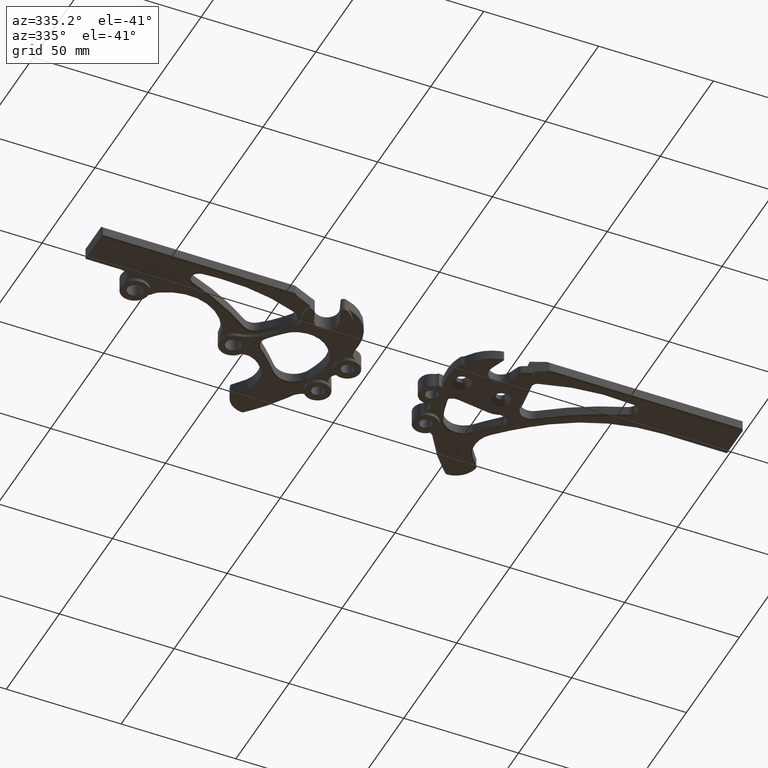
[diagram: clean part render]
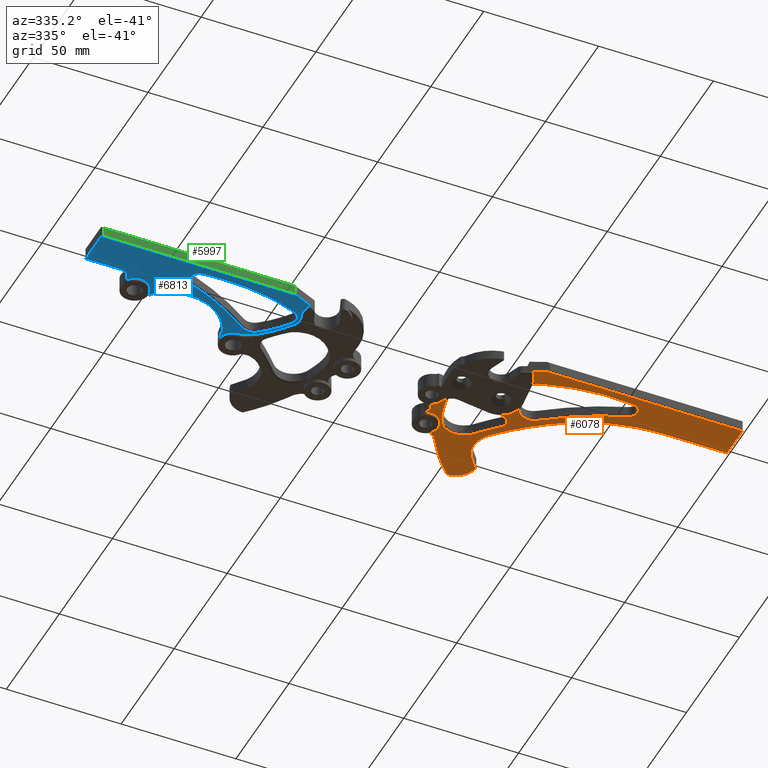
[diagram: same view with three faces highlighted in distinct colors, each labeled with its STEP entity id]
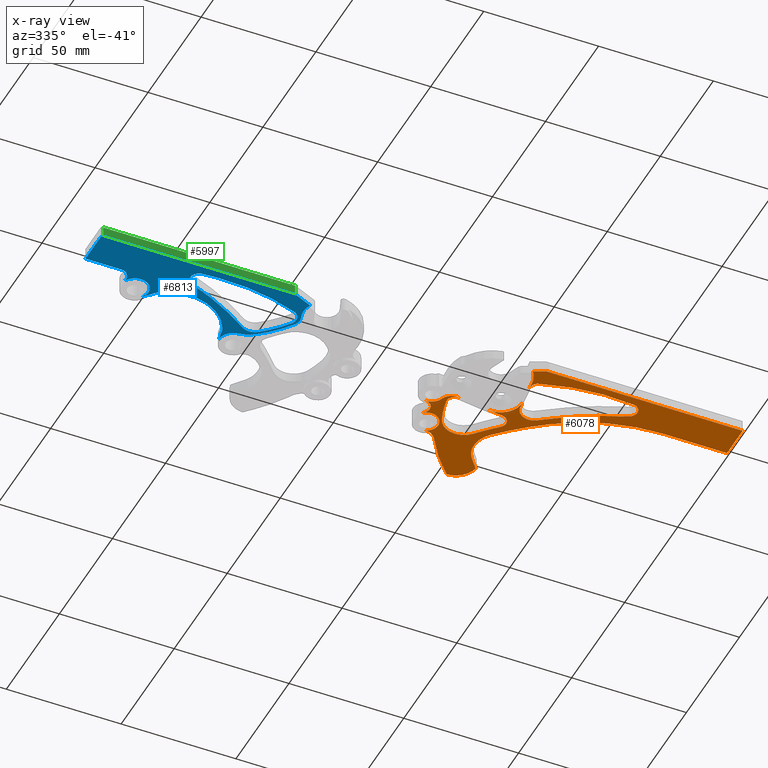
[diagram: x-ray of the same camera — body ghosted, the three highlighted faces saturated]
A machine part, auxiliary view with three faces highlighted in distinct colors.
The next image is the same camera in x-ray (body ghosted, the three faces saturated) — at least one of them is partly hidden behind the body in this view.
Their STEP definitions:

[orange] entity #6078 — the highlighted planar face has unit normal (0, 0, 1).
#10 = VERTEX_POINT ( 'NONE', #9895 ) ;
#13 = VERTEX_POINT ( 'NONE', #1298 ) ;
#84 = CARTESIAN_POINT ( 'NONE',  ( 14.93848785572699900, -5.129387867221003800, 0.0000000000000000000 ) ) ;
#86 = EDGE_CURVE ( 'NONE', #980, #2248, #4770, .T. ) ;
#162 = DIRECTION ( 'NONE',  ( 0.0000000000000000000, -0.0000000000000000000, -1.000000000000000000 ) ) ;
#179 = DIRECTION ( 'NONE',  ( 0.0000000000000000000, -0.0000000000000000000, -1.000000000000000000 ) ) ;
#217 = ORIENTED_EDGE ( 'NONE', *, *, #1196, .T. ) ;
#228 = EDGE_CURVE ( 'NONE', #10, #8892, #1745, .T. ) ;
#249 = CARTESIAN_POINT ( 'NONE',  ( 14.96386290219296600, -5.108149143146475200, 0.0000000000000000000 ) ) ;
#291 = CARTESIAN_POINT ( 'NONE',  ( 14.90768251114664300, -6.823930462202310000, 0.0000000000000000000 ) ) ;
#355 = CARTESIAN_POINT ( 'NONE',  ( 12.40139082220093800, -5.888314618672154700, 0.0000000000000000000 ) ) ;
#366 = DIRECTION ( 'NONE',  ( -0.0000000000000000000, 0.0000000000000000000, 1.000000000000000000 ) ) ;
#404 = CIRCLE ( 'NONE', #8381, 0.03000000000000159100 ) ;
#405 = LINE ( 'NONE', #6717, #8445 ) ;
#431 = DIRECTION ( 'NONE',  ( -0.0000000000000000000, 0.0000000000000000000, 1.000000000000000000 ) ) ;
#514 = ORIENTED_EDGE ( 'NONE', *, *, #6101, .F. ) ;
#536 = CIRCLE ( 'NONE', #10096, 0.2170000000001818500 ) ;
#543 = VERTEX_POINT ( 'NONE', #6367 ) ;
#566 = EDGE_CURVE ( 'NONE', #2984, #5404, #1374, .T. ) ;
#578 = AXIS2_PLACEMENT_3D ( 'NONE', #4456, #9915, #5262 ) ;
#580 = CARTESIAN_POINT ( 'NONE',  ( 13.84133386730599800, -5.039152984625999900, 0.0000000000000000000 ) ) ;
#584 = DIRECTION ( 'NONE',  ( 1.000000000000000000, -1.615548710832401200E-014, 0.0000000000000000000 ) ) ;
#586 = VERTEX_POINT ( 'NONE', #9035 ) ;
#592 = EDGE_CURVE ( 'NONE', #5669, #586, #3183, .T. ) ;
#596 = ORIENTED_EDGE ( 'NONE', *, *, #1873, .F. ) ;
#605 = CARTESIAN_POINT ( 'NONE',  ( 4.792407545410773300, 2.986386773395025300, 0.0000000000000000000 ) ) ;
#643 = VERTEX_POINT ( 'NONE', #7726 ) ;
#671 = AXIS2_PLACEMENT_3D ( 'NONE', #8631, #6749, #2089 ) ;
#673 = ORIENTED_EDGE ( 'NONE', *, *, #891, .F. ) ;
#724 = DIRECTION ( 'NONE',  ( 1.000000000000000000, 0.0000000000000000000, 0.0000000000000000000 ) ) ;
#801 = CIRCLE ( 'NONE', #8638, 0.1300000000001169100 ) ;
#820 = CARTESIAN_POINT ( 'NONE',  ( 6.188336416106102100, -9.930739848668265400, 0.0000000000000000000 ) ) ;
#863 = CARTESIAN_POINT ( 'NONE',  ( 8.679077495166328800, -10.36875431358551900, 0.0000000000000000000 ) ) ;
#882 = AXIS2_PLACEMENT_3D ( 'NONE', #9002, #5907, #2037 ) ;
#891 = EDGE_CURVE ( 'NONE', #2194, #8277, #8546, .T. ) ;
#893 = EDGE_CURVE ( 'NONE', #8277, #8587, #2341, .T. ) ;
#951 = CARTESIAN_POINT ( 'NONE',  ( 15.54171915078100100, -5.615564889361000000, 0.0000000000000000000 ) ) ;
#955 = ORIENTED_EDGE ( 'NONE', *, *, #3780, .T. ) ;
#980 = VERTEX_POINT ( 'NONE', #9948 ) ;
#1008 = DIRECTION ( 'NONE',  ( 1.000000000000000000, -5.035664506601458100E-015, 0.0000000000000000000 ) ) ;
#1050 = DIRECTION ( 'NONE',  ( 0.0000000000000000000, 0.0000000000000000000, -1.000000000000000000 ) ) ;
#1129 = DIRECTION ( 'NONE',  ( -0.0000000000000000000, 0.0000000000000000000, 1.000000000000000000 ) ) ;
#1139 = LINE ( 'NONE', #1283, #9170 ) ;
#1167 = CIRCLE ( 'NONE', #6718, 0.1299999999999988900 ) ;
#1174 = CARTESIAN_POINT ( 'NONE',  ( 14.41569893284230000, -5.736495281540738800, 0.0000000000000000000 ) ) ;
#1196 = EDGE_CURVE ( 'NONE', #586, #3013, #4996, .T. ) ;
#1234 = AXIS2_PLACEMENT_3D ( 'NONE', #5324, #9973, #4514 ) ;
#1265 = DIRECTION ( 'NONE',  ( 0.0000000000000000000, 0.0000000000000000000, -1.000000000000000000 ) ) ;
#1283 = CARTESIAN_POINT ( 'NONE',  ( 9.503839369260257200, 4.377605915475250200, 0.0000000000000000000 ) ) ;
#1291 = CARTESIAN_POINT ( 'NONE',  ( 14.93451234347010500, -6.622697348646668500, 4.320534986073510200E-016 ) ) ;
#1298 = CARTESIAN_POINT ( 'NONE',  ( 14.33225700334612200, -5.636808550217133500, 0.0000000000000000000 ) ) ;
#1345 = ORIENTED_EDGE ( 'NONE', *, *, #9802, .T. ) ;
#1374 = CIRCLE ( 'NONE', #8245, 0.3750000000000002200 ) ;
#1401 = DIRECTION ( 'NONE',  ( 0.0000000000000000000, 0.0000000000000000000, -1.000000000000000000 ) ) ;
#1446 = ORIENTED_EDGE ( 'NONE', *, *, #1715, .T. ) ;
#1466 = DIRECTION ( 'NONE',  ( -0.5288691552148479000, 0.8487033737781021200, 0.0000000000000000000 ) ) ;
#1468 = VERTEX_POINT ( 'NONE', #4424 ) ;
#1526 = VERTEX_POINT ( 'NONE', #84 ) ;
#1580 = ORIENTED_EDGE ( 'NONE', *, *, #86, .T. ) ;
#1588 = DIRECTION ( 'NONE',  ( -0.0000000000000000000, 0.0000000000000000000, 1.000000000000000000 ) ) ;
#1595 = DIRECTION ( 'NONE',  ( 1.000000000000000000, 0.0000000000000000000, 0.0000000000000000000 ) ) ;
#1652 = DIRECTION ( 'NONE',  ( 0.0000000000000000000, -0.0000000000000000000, -1.000000000000000000 ) ) ;
#1665 = DIRECTION ( 'NONE',  ( 0.0000000000000000000, -0.0000000000000000000, -1.000000000000000000 ) ) ;
#1667 = CARTESIAN_POINT ( 'NONE',  ( 15.00809028522814400, -5.099816030558295100, -3.523699360290486500E-016 ) ) ;
#1697 = VERTEX_POINT ( 'NONE', #5814 ) ;
#1715 = EDGE_CURVE ( 'NONE', #4036, #980, #2517, .T. ) ;
#1745 = CIRCLE ( 'NONE', #8622, 0.1500000000926285400 ) ;
#1782 = ORIENTED_EDGE ( 'NONE', *, *, #7182, .T. ) ;
#1786 = VERTEX_POINT ( 'NONE', #249 ) ;
#1810 = VERTEX_POINT ( 'NONE', #5224 ) ;
#1840 = VERTEX_POINT ( 'NONE', #4697 ) ;
#1857 = DIRECTION ( 'NONE',  ( 0.0000000000000000000, 0.0000000000000000000, -1.000000000000000000 ) ) ;
#1866 = CARTESIAN_POINT ( 'NONE',  ( 15.46566103589562700, -6.172779023257161800, -3.381462238251419300E-016 ) ) ;
#1873 = EDGE_CURVE ( 'NONE', #8587, #8640, #7989, .T. ) ;
#1902 = CARTESIAN_POINT ( 'NONE',  ( 15.38602449058177000, -6.841430256784339500, -3.377695072063128100E-016 ) ) ;
#1989 = VECTOR ( 'NONE', #8579, 39.37007874015748100 ) ;
#2001 = AXIS2_PLACEMENT_3D ( 'NONE', #3773, #9235, #4563 ) ;
#2006 = AXIS2_PLACEMENT_3D ( 'NONE', #3415, #1129, #5786 ) ;
#2037 = DIRECTION ( 'NONE',  ( 1.000000000000000000, 0.0000000000000000000, 0.0000000000000000000 ) ) ;
#2071 = CARTESIAN_POINT ( 'NONE',  ( 13.80986172813048000, -4.996587982624753000, 6.164659355067230100E-017 ) ) ;
#2089 = DIRECTION ( 'NONE',  ( 1.000000000000000000, 0.0000000000000000000, 0.0000000000000000000 ) ) ;
#2104 = VERTEX_POINT ( 'NONE', #4568 ) ;
#2109 = ORIENTED_EDGE ( 'NONE', *, *, #5968, .T. ) ;
#2139 = ORIENTED_EDGE ( 'NONE', *, *, #2334, .T. ) ;
#2189 = EDGE_CURVE ( 'NONE', #8066, #7126, #7381, .T. ) ;
#2194 = VERTEX_POINT ( 'NONE', #8429 ) ;
#2248 = VERTEX_POINT ( 'NONE', #355 ) ;
#2260 = EDGE_CURVE ( 'NONE', #8268, #4616, #1167, .T. ) ;
#2334 = EDGE_CURVE ( 'NONE', #9584, #7754, #8215, .T. ) ;
#2341 = CIRCLE ( 'NONE', #6735, 4.869999999999557800 ) ;
#2347 = DIRECTION ( 'NONE',  ( 1.000000000000000000, 0.0000000000000000000, 0.0000000000000000000 ) ) ;
#2376 = AXIS2_PLACEMENT_3D ( 'NONE', #5919, #6701, #5153 ) ;
#2377 = CIRCLE ( 'NONE', #578, 0.1300000000001169100 ) ;
#2410 = CARTESIAN_POINT ( 'NONE',  ( 15.54171915078100100, -5.615564889361000000, 0.0000000000000000000 ) ) ;
#2433 = DIRECTION ( 'NONE',  ( -0.7668210101809026500, -0.6418609961238802600, 0.0000000000000000000 ) ) ;
#2491 = ORIENTED_EDGE ( 'NONE', *, *, #5019, .F. ) ;
#2493 = EDGE_CURVE ( 'NONE', #3615, #1468, #801, .T. ) ;
#2515 = ORIENTED_EDGE ( 'NONE', *, *, #6406, .F. ) ;
#2517 = CIRCLE ( 'NONE', #671, 0.1500000000000691600 ) ;
#2571 = AXIS2_PLACEMENT_3D ( 'NONE', #2787, #9199, #3712 ) ;
#2599 = ORIENTED_EDGE ( 'NONE', *, *, #6704, .T. ) ;
#2619 = ORIENTED_EDGE ( 'NONE', *, *, #3367, .T. ) ;
#2632 = CARTESIAN_POINT ( 'NONE',  ( 15.46109759199811900, -6.033190573565650400, 0.0000000000000000000 ) ) ;
#2650 = AXIS2_PLACEMENT_3D ( 'NONE', #5885, #1857, #9672 ) ;
#2653 = CARTESIAN_POINT ( 'NONE',  ( 5.878947960301034400, -9.434248375007980400, 0.0000000000000000000 ) ) ;
#2683 = ORIENTED_EDGE ( 'NONE', *, *, #4933, .T. ) ;
#2684 = DIRECTION ( 'NONE',  ( 1.000000000000000000, 0.0000000000000000000, 0.0000000000000000000 ) ) ;
#2756 = AXIS2_PLACEMENT_3D ( 'NONE', #4696, #9363, #3907 ) ;
#2787 = CARTESIAN_POINT ( 'NONE',  ( 12.37126695896290900, -5.741370571961724100, 0.0000000000000000000 ) ) ;
#2797 = B_SPLINE_CURVE_WITH_KNOTS ( 'NONE', 3,
 ( #9625, #4951, #4167, #8858, #3377, #8074, #2632 ),
 .UNSPECIFIED., .F., .F.,
 ( 4, 1, 1, 1, 4 ),
 ( 0.001690120772360766100, 0.001727117016328427600, 0.002471876945726911700, 0.003212460074078706200, 0.003933833950585725900 ),
 .UNSPECIFIED. ) ;
#2804 = ORIENTED_EDGE ( 'NONE', *, *, #3789, .F. ) ;
#2814 = ORIENTED_EDGE ( 'NONE', *, *, #3771, .F. ) ;
#2863 = DIRECTION ( 'NONE',  ( -0.0000000000000000000, 0.0000000000000000000, 1.000000000000000000 ) ) ;
#2871 = CARTESIAN_POINT ( 'NONE',  ( 14.90768251114664300, -6.823930462202310000, 0.0000000000000000000 ) ) ;
#2898 = AXIS2_PLACEMENT_3D ( 'NONE', #5699, #1050, #6473 ) ;
#2935 = ORIENTED_EDGE ( 'NONE', *, *, #8879, .T. ) ;
#2976 = LINE ( 'NONE', #863, #6864 ) ;
#2984 = VERTEX_POINT ( 'NONE', #291 ) ;
#3013 = VERTEX_POINT ( 'NONE', #4474 ) ;
#3025 = EDGE_CURVE ( 'NONE', #2248, #8160, #5172, .T. ) ;
#3125 = CARTESIAN_POINT ( 'NONE',  ( 15.02192612433218600, -5.229077662747769800, 0.0000000000000000000 ) ) ;
#3183 = CIRCLE ( 'NONE', #7207, 4.999999999999580800 ) ;
#3228 = CARTESIAN_POINT ( 'NONE',  ( 15.48288070106708500, -5.124555952754346500, 0.0000000000000000000 ) ) ;
#3243 = CARTESIAN_POINT ( 'NONE',  ( 15.37125948151188500, -6.902251738806183900, -7.009673394545322300E-017 ) ) ;
#3255 = ORIENTED_EDGE ( 'NONE', *, *, #10017, .F. ) ;
#3269 = AXIS2_PLACEMENT_3D ( 'NONE', #951, #4110, #1008 ) ;
#3328 = ORIENTED_EDGE ( 'NONE', *, *, #893, .F. ) ;
#3367 = EDGE_CURVE ( 'NONE', #1526, #1786, #405, .T. ) ;
#3377 = CARTESIAN_POINT ( 'NONE',  ( 15.46184803449254700, -6.004421812635890800, -2.108911952140234500E-016 ) ) ;
#3397 = ORIENTED_EDGE ( 'NONE', *, *, #6262, .T. ) ;
#3415 = CARTESIAN_POINT ( 'NONE',  ( 14.46702915825320300, -8.380438741605633600, 0.0000000000000000000 ) ) ;
#3435 = VECTOR ( 'NONE', #3596, 39.37007874015748100 ) ;
#3463 = EDGE_CURVE ( 'NONE', #2194, #9630, #4781, .T. ) ;
#3492 = CARTESIAN_POINT ( 'NONE',  ( 15.59317091056738000, -5.826376929753981100, 0.0000000000000000000 ) ) ;
#3541 = CARTESIAN_POINT ( 'NONE',  ( 13.40551959680070800, -10.78644950901810000, 0.0000000000000000000 ) ) ;
#3596 = DIRECTION ( 'NONE',  ( 0.8487033737782993000, 0.5288691552145317100, 0.0000000000000000000 ) ) ;
#3614 = AXIS2_PLACEMENT_3D ( 'NONE', #7554, #5207, #5528 ) ;
#3615 = VERTEX_POINT ( 'NONE', #4360 ) ;
#3625 = CARTESIAN_POINT ( 'NONE',  ( 13.40551959680067300, -10.78644950901797200, 0.0000000000000000000 ) ) ;
#3629 = DIRECTION ( 'NONE',  ( 1.000000000000000000, 0.0000000000000000000, 0.0000000000000000000 ) ) ;
#3686 = FACE_BOUND ( 'NONE', #10102, .T. ) ;
#3712 = DIRECTION ( 'NONE',  ( 1.000000000000000000, 0.0000000000000000000, 0.0000000000000000000 ) ) ;
#3763 = DIRECTION ( 'NONE',  ( -0.0000000000000000000, 0.0000000000000000000, 1.000000000000000000 ) ) ;
#3771 = EDGE_CURVE ( 'NONE', #1697, #8082, #5053, .T. ) ;
#3773 = CARTESIAN_POINT ( 'NONE',  ( 14.41979575576495500, -5.752617084974213300, 0.0000000000000000000 ) ) ;
#3780 = EDGE_CURVE ( 'NONE', #4184, #5404, #6727, .T. ) ;
#3789 = EDGE_CURVE ( 'NONE', #643, #8892, #6621, .T. ) ;
#3802 = CARTESIAN_POINT ( 'NONE',  ( 13.78376634852109500, -4.914171213038237300, 0.0000000000000000000 ) ) ;
#3834 = AXIS2_PLACEMENT_3D ( 'NONE', #9229, #3763, #8453 ) ;
#3851 = CARTESIAN_POINT ( 'NONE',  ( 14.94107575597033100, -5.661552702053799500, 0.0000000000000000000 ) ) ;
#3904 = DIRECTION ( 'NONE',  ( 1.000000000000000000, 0.0000000000000000000, 0.0000000000000000000 ) ) ;
#3907 = DIRECTION ( 'NONE',  ( 1.000000000000000000, -8.405686134351791600E-015, 0.0000000000000000000 ) ) ;
#3938 = CIRCLE ( 'NONE', #2001, 0.1350000000001863900 ) ;
#4036 = VERTEX_POINT ( 'NONE', #5588 ) ;
#4107 = AXIS2_PLACEMENT_3D ( 'NONE', #7465, #179, #5614 ) ;
#4110 = DIRECTION ( 'NONE',  ( 0.0000000000000000000, -0.0000000000000000000, -1.000000000000000000 ) ) ;
#4162 = CIRCLE ( 'NONE', #2650, 0.2000000000000011500 ) ;
#4167 = CARTESIAN_POINT ( 'NONE',  ( 15.47574994701815100, -5.957154776959496800, -2.110333769211004700E-016 ) ) ;
#4184 = VERTEX_POINT ( 'NONE', #5714 ) ;
#4202 = CARTESIAN_POINT ( 'NONE',  ( 10.97545526996499600, -6.935866041534997500, 0.0000000000000000000 ) ) ;
#4238 = EDGE_CURVE ( 'NONE', #543, #5610, #5531, .T. ) ;
#4287 = CIRCLE ( 'NONE', #5205, 0.2193529867079986300 ) ;
#4297 = CARTESIAN_POINT ( 'NONE',  ( 13.81284693505934900, -5.803068684767302100, 0.0000000000000000000 ) ) ;
#4338 = DIRECTION ( 'NONE',  ( 0.9912457952158698600, 0.1320294416668402700, 0.0000000000000000000 ) ) ;
#4354 = ORIENTED_EDGE ( 'NONE', *, *, #5716, .T. ) ;
#4360 = CARTESIAN_POINT ( 'NONE',  ( 14.28569893284218400, -5.736495281540738800, 0.0000000000000000000 ) ) ;
#4367 = AXIS2_PLACEMENT_3D ( 'NONE', #9607, #1401, #7921 ) ;
#4424 = CARTESIAN_POINT ( 'NONE',  ( 14.28569998468629400, -5.737018233127917800, 0.0000000000000000000 ) ) ;
#4456 = CARTESIAN_POINT ( 'NONE',  ( 14.41569893284230000, -5.736495281540738800, 0.0000000000000000000 ) ) ;
#4474 = CARTESIAN_POINT ( 'NONE',  ( 15.28554963558085300, -5.599603155920909200, 0.0000000000000000000 ) ) ;
#4503 = ORIENTED_EDGE ( 'NONE', *, *, #8566, .F. ) ;
#4514 = DIRECTION ( 'NONE',  ( 1.000000000000000000, 0.0000000000000000000, 0.0000000000000000000 ) ) ;
#4546 = CIRCLE ( 'NONE', #2898, 0.5399854739220001400 ) ;
#4563 = DIRECTION ( 'NONE',  ( 1.000000000000000000, 0.0000000000000000000, 0.0000000000000000000 ) ) ;
#4568 = CARTESIAN_POINT ( 'NONE',  ( 14.04492934971974300, -5.649064607402516800, -2.101659684762460800E-013 ) ) ;
#4572 = CARTESIAN_POINT ( 'NONE',  ( 15.45790067793590200, -6.403837712273236200, -3.374792687485637800E-016 ) ) ;
#4616 = VERTEX_POINT ( 'NONE', #2071 ) ;
#4654 = EDGE_CURVE ( 'NONE', #8066, #9630, #9053, .T. ) ;
#4696 = CARTESIAN_POINT ( 'NONE',  ( 15.04200169408400000, -5.225315099675999200, 0.0000000000000000000 ) ) ;
#4697 = CARTESIAN_POINT ( 'NONE',  ( 14.28479575576476900, -5.752617084974213300, 0.0000000000000000000 ) ) ;
#4770 = CIRCLE ( 'NONE', #2571, 0.1500000000000691600 ) ;
#4781 = LINE ( 'NONE', #820, #1989 ) ;
#4912 = EDGE_CURVE ( 'NONE', #8082, #9749, #1139, .T. ) ;
#4933 = EDGE_CURVE ( 'NONE', #4616, #1810, #7101, .T. ) ;
#4951 = CARTESIAN_POINT ( 'NONE',  ( 15.48052873044534800, -5.947997080069606000, -2.110054557396745000E-016 ) ) ;
#4996 = CIRCLE ( 'NONE', #5359, 0.3499999999999916000 ) ;
#5019 = EDGE_CURVE ( 'NONE', #543, #7126, #404, .T. ) ;
#5053 = CIRCLE ( 'NONE', #4367, 0.3586981296120016500 ) ;
#5098 = CARTESIAN_POINT ( 'NONE',  ( 15.16232067565839400, -5.176087641150292700, 0.0000000000000000000 ) ) ;
#5153 = DIRECTION ( 'NONE',  ( 1.000000000000000000, 0.0000000000000000000, 0.0000000000000000000 ) ) ;
#5172 = CIRCLE ( 'NONE', #4107, 5.000000000000218500 ) ;
#5205 = AXIS2_PLACEMENT_3D ( 'NONE', #8610, #7029, #1595 ) ;
#5207 = DIRECTION ( 'NONE',  ( 0.0000000000000000000, -0.0000000000000000000, -1.000000000000000000 ) ) ;
#5216 = DIRECTION ( 'NONE',  ( 0.4183614115447572600, -0.9082806445863955700, 0.0000000000000000000 ) ) ;
#5224 = CARTESIAN_POINT ( 'NONE',  ( 13.69189823002395600, -4.946844117293560200, 0.0000000000000000000 ) ) ;
#5262 = DIRECTION ( 'NONE',  ( 1.000000000000000000, 0.0000000000000000000, 0.0000000000000000000 ) ) ;
#5274 = ORIENTED_EDGE ( 'NONE', *, *, #2260, .T. ) ;
#5275 = CARTESIAN_POINT ( 'NONE',  ( 13.63066654166259400, -5.921656722761418300, 0.0000000000000000000 ) ) ;
#5282 = VECTOR ( 'NONE', #5216, 39.37007874015748900 ) ;
#5324 = CARTESIAN_POINT ( 'NONE',  ( 13.21870635791768800, -5.971300432718258800, 0.0000000000000000000 ) ) ;
#5359 = AXIS2_PLACEMENT_3D ( 'NONE', #3851, #366, #9131 ) ;
#5404 = VERTEX_POINT ( 'NONE', #3243 ) ;
#5455 = DIRECTION ( 'NONE',  ( 1.000000000000000000, 0.0000000000000000000, 0.0000000000000000000 ) ) ;
#5523 = FACE_OUTER_BOUND ( 'NONE', #8806, .T. ) ;
#5528 = DIRECTION ( 'NONE',  ( 1.000000000000000000, 0.0000000000000000000, 0.0000000000000000000 ) ) ;
#5531 = LINE ( 'NONE', #2653, #3435 ) ;
#5547 = DIRECTION ( 'NONE',  ( 1.000000000000000000, 0.0000000000000000000, 0.0000000000000000000 ) ) ;
#5588 = CARTESIAN_POINT ( 'NONE',  ( 12.27798377501816100, -5.623904629692696700, 0.0000000000000000000 ) ) ;
#5610 = VERTEX_POINT ( 'NONE', #8260 ) ;
#5614 = DIRECTION ( 'NONE',  ( 1.000000000000000000, 0.0000000000000000000, 0.0000000000000000000 ) ) ;
#5660 = EDGE_CURVE ( 'NONE', #2104, #8160, #8459, .T. ) ;
#5669 = VERTEX_POINT ( 'NONE', #7765 ) ;
#5699 = CARTESIAN_POINT ( 'NONE',  ( 14.27422470284200000, -4.688262127954000200, 0.0000000000000000000 ) ) ;
#5714 = CARTESIAN_POINT ( 'NONE',  ( 15.46109759199811900, -6.033190573565650400, 0.0000000000000000000 ) ) ;
#5716 = EDGE_CURVE ( 'NONE', #2104, #7930, #4287, .T. ) ;
#5737 = LINE ( 'NONE', #9814, #7822 ) ;
#5767 = CARTESIAN_POINT ( 'NONE',  ( 14.93931741003900800, -6.546989931653858000, 0.0000000000000000000 ) ) ;
#5774 = ORIENTED_EDGE ( 'NONE', *, *, #7293, .T. ) ;
#5786 = DIRECTION ( 'NONE',  ( 1.000000000000000000, 0.0000000000000000000, 0.0000000000000000000 ) ) ;
#5814 = CARTESIAN_POINT ( 'NONE',  ( 14.53637432860099700, -5.465953881429005200, 0.0000000000000000000 ) ) ;
#5820 = DIRECTION ( 'NONE',  ( 1.000000000000000000, 0.0000000000000000000, 0.0000000000000000000 ) ) ;
#5837 = DIRECTION ( 'NONE',  ( -0.0000000000000000000, 0.0000000000000000000, 1.000000000000000000 ) ) ;
#5885 = CARTESIAN_POINT ( 'NONE',  ( 15.09223068564800000, -5.261517041257000000, 0.0000000000000000000 ) ) ;
#5907 = DIRECTION ( 'NONE',  ( -0.0000000000000000000, 0.0000000000000000000, 1.000000000000000000 ) ) ;
#5911 = CARTESIAN_POINT ( 'NONE',  ( 15.36253282578499900, -4.943986329298000200, 0.0000000000000000000 ) ) ;
#5919 = CARTESIAN_POINT ( 'NONE',  ( 15.62873664317623800, -5.972099538472942700, 0.0000000000000000000 ) ) ;
#5923 = CARTESIAN_POINT ( 'NONE',  ( 14.93931741003900800, -6.546989931653858000, 0.0000000000000000000 ) ) ;
#5930 = AXIS2_PLACEMENT_3D ( 'NONE', #6046, #1665, #7361 ) ;
#5968 = EDGE_CURVE ( 'NONE', #1786, #8705, #4162, .T. ) ;
#5980 = CIRCLE ( 'NONE', #1234, 2.099999999999995600 ) ;
#6037 = DIRECTION ( 'NONE',  ( -0.0000000000000000000, 0.0000000000000000000, 1.000000000000000000 ) ) ;
#6046 = CARTESIAN_POINT ( 'NONE',  ( 14.47026121039398400, -6.517219450063329600, 0.0000000000000000000 ) ) ;
#6053 = CARTESIAN_POINT ( 'NONE',  ( 10.70210529848244900, -6.440482560694720200, 0.0000000000000000000 ) ) ;
#6078 = ADVANCED_FACE ( 'NONE', ( #3686, #5523 ), #8013, .F. ) ;
#6101 = EDGE_CURVE ( 'NONE', #8268, #7930, #9420, .T. ) ;
#6150 = ORIENTED_EDGE ( 'NONE', *, *, #5660, .F. ) ;
#6204 = AXIS2_PLACEMENT_3D ( 'NONE', #6513, #162, #7139 ) ;
#6262 = EDGE_CURVE ( 'NONE', #2984, #8640, #9603, .T. ) ;
#6281 = DIRECTION ( 'NONE',  ( -0.4183661917541004500, 0.9082784427680595800, 0.0000000000000000000 ) ) ;
#6326 = ORIENTED_EDGE ( 'NONE', *, *, #8798, .T. ) ;
#6367 = CARTESIAN_POINT ( 'NONE',  ( 10.67281165049749900, -6.446954205596435700, 6.746050078589156600E-019 ) ) ;
#6373 = CARTESIAN_POINT ( 'NONE',  ( 15.41760709616015400, -6.692419460308728100, -3.374792687485637800E-016 ) ) ;
#6391 = CIRCLE ( 'NONE', #2756, 0.1299999999999967000 ) ;
#6406 = EDGE_CURVE ( 'NONE', #9584, #643, #6980, .T. ) ;
#6424 = DIRECTION ( 'NONE',  ( -0.0000000000000000000, 0.0000000000000000000, 1.000000000000000000 ) ) ;
#6473 = DIRECTION ( 'NONE',  ( -1.000000000000000000, 0.0000000000000000000, 0.0000000000000000000 ) ) ;
#6477 = ORIENTED_EDGE ( 'NONE', *, *, #6806, .T. ) ;
#6482 = ORIENTED_EDGE ( 'NONE', *, *, #3463, .T. ) ;
#6513 = CARTESIAN_POINT ( 'NONE',  ( 13.49104769700490500, -8.938427608694947700, 0.0000000000000000000 ) ) ;
#6534 = DIRECTION ( 'NONE',  ( -0.0000000000000000000, 0.0000000000000000000, 1.000000000000000000 ) ) ;
#6557 = CARTESIAN_POINT ( 'NONE',  ( 15.56607047660799900, -5.249373664821001200, 0.0000000000000000000 ) ) ;
#6563 = VERTEX_POINT ( 'NONE', #1667 ) ;
#6590 = ORIENTED_EDGE ( 'NONE', *, *, #2493, .T. ) ;
#6615 = AXIS2_PLACEMENT_3D ( 'NONE', #7407, #6534, #5455 ) ;
#6621 = CIRCLE ( 'NONE', #3269, 0.2169999999072990100 ) ;
#6687 = DIRECTION ( 'NONE',  ( -1.000000000000000000, 0.0000000000000000000, 0.0000000000000000000 ) ) ;
#6693 = ORIENTED_EDGE ( 'NONE', *, *, #3025, .T. ) ;
#6701 = DIRECTION ( 'NONE',  ( -0.0000000000000000000, 0.0000000000000000000, 1.000000000000000000 ) ) ;
#6704 = EDGE_CURVE ( 'NONE', #1810, #4036, #7343, .T. ) ;
#6709 = CARTESIAN_POINT ( 'NONE',  ( 14.92471970842957400, -6.715803740928834000, 4.315988618716054400E-016 ) ) ;
#6717 = CARTESIAN_POINT ( 'NONE',  ( 8.678637788806685900, -10.36883554663497800, -0.0000000000000000000 ) ) ;
#6718 = AXIS2_PLACEMENT_3D ( 'NONE', #8449, #6882, #9966 ) ;
#6726 = CARTESIAN_POINT ( 'NONE',  ( 13.73626132056927100, -4.641574748712412400, 0.0000000000000000000 ) ) ;
#6727 = B_SPLINE_CURVE_WITH_KNOTS ( 'NONE', 3,
 ( #6866, #1866, #4572, #6373, #1902, #7102 ),
 .UNSPECIFIED., .F., .F.,
 ( 4, 1, 1, 4 ),
 ( 0.0000000000000000000, 0.01066338146505153500, 0.01748036183517520300, 0.02226130557371226700 ),
 .UNSPECIFIED. ) ;
#6735 = AXIS2_PLACEMENT_3D ( 'NONE', #3541, #1652, #584 ) ;
#6749 = DIRECTION ( 'NONE',  ( -0.0000000000000000000, 0.0000000000000000000, 1.000000000000000000 ) ) ;
#6806 = EDGE_CURVE ( 'NONE', #7461, #10, #8181, .T. ) ;
#6818 = ORIENTED_EDGE ( 'NONE', *, *, #4654, .F. ) ;
#6864 = VECTOR ( 'NONE', #2433, 39.37007874015748900 ) ;
#6866 = CARTESIAN_POINT ( 'NONE',  ( 15.46109759199811900, -6.033190573565650400, 0.0000000000000000000 ) ) ;
#6882 = DIRECTION ( 'NONE',  ( -0.0000000000000000000, 0.0000000000000000000, 1.000000000000000000 ) ) ;
#6927 = DIRECTION ( 'NONE',  ( 0.0000000000000000000, -0.0000000000000000000, -1.000000000000000000 ) ) ;
#6954 = ORIENTED_EDGE ( 'NONE', *, *, #7092, .T. ) ;
#6980 = CIRCLE ( 'NONE', #7211, 0.2169999999072990100 ) ;
#7023 = CARTESIAN_POINT ( 'NONE',  ( 15.56607047660799900, -5.249373664821001200, 0.0000000000000000000 ) ) ;
#7029 = DIRECTION ( 'NONE',  ( -0.0000000000000000000, 0.0000000000000000000, 1.000000000000000000 ) ) ;
#7069 = CARTESIAN_POINT ( 'NONE',  ( 14.04142357997199900, -5.473556369307999600, 0.0000000000000000000 ) ) ;
#7092 = EDGE_CURVE ( 'NONE', #3013, #10003, #5980, .T. ) ;
#7101 = CIRCLE ( 'NONE', #6615, 0.1099999999998849100 ) ;
#7102 = CARTESIAN_POINT ( 'NONE',  ( 15.37125948151188500, -6.902251738806183900, -7.009673394545322300E-017 ) ) ;
#7126 = VERTEX_POINT ( 'NONE', #8983 ) ;
#7129 = EDGE_CURVE ( 'NONE', #5610, #7721, #5737, .T. ) ;
#7139 = DIRECTION ( 'NONE',  ( 1.000000000000000000, 3.618341713462655300E-015, 0.0000000000000000000 ) ) ;
#7182 = EDGE_CURVE ( 'NONE', #1468, #1840, #9150, .T. ) ;
#7193 = ORIENTED_EDGE ( 'NONE', *, *, #9845, .T. ) ;
#7207 = AXIS2_PLACEMENT_3D ( 'NONE', #3625, #6927, #2347 ) ;
#7211 = AXIS2_PLACEMENT_3D ( 'NONE', #2410, #8232, #2684 ) ;
#7293 = EDGE_CURVE ( 'NONE', #7754, #4184, #2797, .T. ) ;
#7343 = CIRCLE ( 'NONE', #2006, 3.520000000000327300 ) ;
#7361 = DIRECTION ( 'NONE',  ( 1.000000000000000000, 0.0000000000000000000, 0.0000000000000000000 ) ) ;
#7381 = LINE ( 'NONE', #605, #7868 ) ;
#7407 = CARTESIAN_POINT ( 'NONE',  ( 13.71612107153108800, -5.054143949303191400, 0.0000000000000000000 ) ) ;
#7461 = VERTEX_POINT ( 'NONE', #3228 ) ;
#7465 = CARTESIAN_POINT ( 'NONE',  ( 13.40551959680067300, -10.78644950901797200, 0.0000000000000000000 ) ) ;
#7470 = CARTESIAN_POINT ( 'NONE',  ( 10.98220010629825300, -6.943445679257201200, 3.925231146695559000E-019 ) ) ;
#7527 = EDGE_CURVE ( 'NONE', #6563, #10003, #6391, .T. ) ;
#7542 = CARTESIAN_POINT ( 'NONE',  ( 14.91042086575223600, -6.807380743502629400, 4.317640406789091800E-016 ) ) ;
#7550 = DIRECTION ( 'NONE',  ( 0.7668394905525034400, 0.6418389172753371500, 0.0000000000000000000 ) ) ;
#7554 = CARTESIAN_POINT ( 'NONE',  ( 13.83117666528099900, -5.578816547676000300, 0.0000000000000000000 ) ) ;
#7721 = VERTEX_POINT ( 'NONE', #6726 ) ;
#7726 = CARTESIAN_POINT ( 'NONE',  ( 15.32471915087370100, -5.615564889361000000, 0.0000000000000000000 ) ) ;
#7754 = VERTEX_POINT ( 'NONE', #9006 ) ;
#7765 = CARTESIAN_POINT ( 'NONE',  ( 14.39313026765194100, -5.884957372656177000, 0.0000000000000000000 ) ) ;
#7815 = ORIENTED_EDGE ( 'NONE', *, *, #228, .T. ) ;
#7822 = VECTOR ( 'NONE', #4338, 39.37007874015748900 ) ;
#7858 = ORIENTED_EDGE ( 'NONE', *, *, #592, .T. ) ;
#7868 = VECTOR ( 'NONE', #1466, 39.37007874015748900 ) ;
#7921 = DIRECTION ( 'NONE',  ( -1.000000000000000000, 0.0000000000000000000, 0.0000000000000000000 ) ) ;
#7930 = VERTEX_POINT ( 'NONE', #7069 ) ;
#7989 = CIRCLE ( 'NONE', #5930, 0.4699999999995390600 ) ;
#8013 = PLANE ( 'NONE',  #9830 ) ;
#8041 = DIRECTION ( 'NONE',  ( 1.000000000000000000, 0.0000000000000000000, 0.0000000000000000000 ) ) ;
#8066 = VERTEX_POINT ( 'NONE', #4202 ) ;
#8074 = CARTESIAN_POINT ( 'NONE',  ( 15.46077779681571600, -6.023408550441546400, -2.111579772446547300E-016 ) ) ;
#8078 = ORIENTED_EDGE ( 'NONE', *, *, #7527, .F. ) ;
#8082 = VERTEX_POINT ( 'NONE', #8885 ) ;
#8146 = ORIENTED_EDGE ( 'NONE', *, *, #4238, .T. ) ;
#8160 = VERTEX_POINT ( 'NONE', #4297 ) ;
#8179 = CARTESIAN_POINT ( 'NONE',  ( 15.22187199986267500, -5.109224133842727300, 0.0000000000000000000 ) ) ;
#8181 = CIRCLE ( 'NONE', #9158, 0.1500000000926285400 ) ;
#8193 = AXIS2_PLACEMENT_3D ( 'NONE', #3125, #8599, #3904 ) ;
#8215 = CIRCLE ( 'NONE', #2376, 0.1500000000000014100 ) ;
#8232 = DIRECTION ( 'NONE',  ( 0.0000000000000000000, -0.0000000000000000000, -1.000000000000000000 ) ) ;
#8245 = AXIS2_PLACEMENT_3D ( 'NONE', #8946, #6037, #5547 ) ;
#8260 = CARTESIAN_POINT ( 'NONE',  ( 13.52479675884920200, -4.669740868711079100, 2.731847993664263200E-016 ) ) ;
#8268 = VERTEX_POINT ( 'NONE', #580 ) ;
#8277 = VERTEX_POINT ( 'NONE', #5275 ) ;
#8344 = ORIENTED_EDGE ( 'NONE', *, *, #7129, .T. ) ;
#8346 = CARTESIAN_POINT ( 'NONE',  ( 0.0000000000000000000, 0.0000000000000000000, 0.0000000000000000000 ) ) ;
#8372 = CARTESIAN_POINT ( 'NONE',  ( 9.503911230785171000, 4.377578385497734800, 0.0000000000000000000 ) ) ;
#8381 = AXIS2_PLACEMENT_3D ( 'NONE', #6053, #6424, #724 ) ;
#8429 = CARTESIAN_POINT ( 'NONE',  ( 11.89386284825690900, -6.375343419884605300, -4.967481410354353300E-016 ) ) ;
#8445 = VECTOR ( 'NONE', #7550, 39.37007874015748100 ) ;
#8449 = CARTESIAN_POINT ( 'NONE',  ( 13.72325738350986600, -5.093539968127029000, 0.0000000000000000000 ) ) ;
#8453 = DIRECTION ( 'NONE',  ( 1.000000000000000000, 0.0000000000000000000, 0.0000000000000000000 ) ) ;
#8459 = CIRCLE ( 'NONE', #3614, 0.2250000000000337800 ) ;
#8464 = CARTESIAN_POINT ( 'NONE',  ( 15.55611761863407600, -5.399043102736492900, 0.0000000000000000000 ) ) ;
#8546 = CIRCLE ( 'NONE', #6204, 3.019999999999954300 ) ;
#8566 = EDGE_CURVE ( 'NONE', #9749, #7721, #4546, .T. ) ;
#8579 = DIRECTION ( 'NONE',  ( -0.8487033737781236600, -0.5288691552148134800, 0.0000000000000000000 ) ) ;
#8587 = VERTEX_POINT ( 'NONE', #8811 ) ;
#8599 = DIRECTION ( 'NONE',  ( -0.0000000000000000000, 0.0000000000000000000, 1.000000000000000000 ) ) ;
#8600 = DIRECTION ( 'NONE',  ( 1.000000000000000000, 0.0000000000000000000, 0.0000000000000000000 ) ) ;
#8610 = CARTESIAN_POINT ( 'NONE',  ( 13.84218950781251500, -5.565325194452868600, 0.0000000000000000000 ) ) ;
#8622 = AXIS2_PLACEMENT_3D ( 'NONE', #7023, #1588, #8600 ) ;
#8631 = CARTESIAN_POINT ( 'NONE',  ( 12.37126695896290900, -5.741370571961724100, 0.0000000000000000000 ) ) ;
#8638 = AXIS2_PLACEMENT_3D ( 'NONE', #1174, #431, #5820 ) ;
#8640 = VERTEX_POINT ( 'NONE', #5767 ) ;
#8705 = VERTEX_POINT ( 'NONE', #8179 ) ;
#8798 = EDGE_CURVE ( 'NONE', #13, #3615, #2377, .T. ) ;
#8806 = EDGE_LOOP ( 'NONE', ( #673, #6482, #6818, #9513, #2491, #8146, #8344, #4503, #9687, #2814, #7193, #6326, #6590, #1782, #2935, #7858, #217, #6954, #8078, #1345, #2619, #2109, #3255, #6477, #7815, #2804, #2515, #2139, #5774, #955, #9633, #3397, #596, #3328 ) ) ;
#8811 = CARTESIAN_POINT ( 'NONE',  ( 14.58399497366402300, -6.061188057402691100, 0.0000000000000000000 ) ) ;
#8858 = CARTESIAN_POINT ( 'NONE',  ( 15.46810246189205500, -5.975870158853920700, -2.112913682599703600E-016 ) ) ;
#8879 = EDGE_CURVE ( 'NONE', #1840, #5669, #3938, .T. ) ;
#8885 = CARTESIAN_POINT ( 'NONE',  ( 13.98034934108624900, -5.340955446279314100, 0.0000000000000000000 ) ) ;
#8892 = VERTEX_POINT ( 'NONE', #8464 ) ;
#8946 = CARTESIAN_POINT ( 'NONE',  ( 15.18814395608900000, -6.574999994198000400, 0.0000000000000000000 ) ) ;
#8983 = CARTESIAN_POINT ( 'NONE',  ( 10.67664419726900100, -6.456348635350999600, 0.0000000000000000000 ) ) ;
#9002 = CARTESIAN_POINT ( 'NONE',  ( 11.00091637117844600, -6.919999966878722700, 0.0000000000000000000 ) ) ;
#9006 = CARTESIAN_POINT ( 'NONE',  ( 15.48075676957947700, -5.947564726260748300, 0.0000000000000000000 ) ) ;
#9035 = CARTESIAN_POINT ( 'NONE',  ( 14.84061881097792000, -5.996826324939326500, 0.0000000000000000000 ) ) ;
#9053 = CIRCLE ( 'NONE', #882, 0.02999999999999940600 ) ;
#9131 = DIRECTION ( 'NONE',  ( 1.000000000000000000, 0.0000000000000000000, 0.0000000000000000000 ) ) ;
#9150 = CIRCLE ( 'NONE', #3834, 0.1350000000001863900 ) ;
#9158 = AXIS2_PLACEMENT_3D ( 'NONE', #6557, #5837, #8041 ) ;
#9170 = VECTOR ( 'NONE', #6281, 39.37007874015748100 ) ;
#9199 = DIRECTION ( 'NONE',  ( -0.0000000000000000000, 0.0000000000000000000, 1.000000000000000000 ) ) ;
#9229 = CARTESIAN_POINT ( 'NONE',  ( 14.41979575576495500, -5.752617084974213300, 0.0000000000000000000 ) ) ;
#9235 = DIRECTION ( 'NONE',  ( -0.0000000000000000000, 0.0000000000000000000, 1.000000000000000000 ) ) ;
#9363 = DIRECTION ( 'NONE',  ( 0.0000000000000000000, -0.0000000000000000000, -1.000000000000000000 ) ) ;
#9420 = LINE ( 'NONE', #8372, #5282 ) ;
#9513 = ORIENTED_EDGE ( 'NONE', *, *, #2189, .T. ) ;
#9584 = VERTEX_POINT ( 'NONE', #3492 ) ;
#9603 = B_SPLINE_CURVE_WITH_KNOTS ( 'NONE', 3,
 ( #2871, #7542, #6709, #1291, #5923 ),
 .UNSPECIFIED., .F., .F.,
 ( 4, 1, 4 ),
 ( 0.003278377798598053900, 0.004562750122835244500, 0.01036278354648147500 ),
 .UNSPECIFIED. ) ;
#9607 = CARTESIAN_POINT ( 'NONE',  ( 14.30614790946177300, -5.190889990455506400, 0.0000000000000000000 ) ) ;
#9625 = CARTESIAN_POINT ( 'NONE',  ( 15.48075676957947700, -5.947564726260748300, 0.0000000000000000000 ) ) ;
#9630 = VERTEX_POINT ( 'NONE', #7470 ) ;
#9633 = ORIENTED_EDGE ( 'NONE', *, *, #566, .F. ) ;
#9665 = CIRCLE ( 'NONE', #8193, 0.1299999999999988900 ) ;
#9672 = DIRECTION ( 'NONE',  ( -1.000000000000000000, 0.0000000000000000000, 0.0000000000000000000 ) ) ;
#9687 = ORIENTED_EDGE ( 'NONE', *, *, #4912, .F. ) ;
#9749 = VERTEX_POINT ( 'NONE', #3802 ) ;
#9802 = EDGE_CURVE ( 'NONE', #6563, #1526, #9665, .T. ) ;
#9814 = CARTESIAN_POINT ( 'NONE',  ( 0.8469071267821843800, -6.358378235663143300, 0.0000000000000000000 ) ) ;
#9830 = AXIS2_PLACEMENT_3D ( 'NONE', #8346, #2863, #3629 ) ;
#9845 = EDGE_CURVE ( 'NONE', #1697, #13, #2976, .T. ) ;
#9895 = CARTESIAN_POINT ( 'NONE',  ( 15.41607047651537100, -5.249373664821001200, 0.0000000000000000000 ) ) ;
#9915 = DIRECTION ( 'NONE',  ( -0.0000000000000000000, 0.0000000000000000000, 1.000000000000000000 ) ) ;
#9948 = CARTESIAN_POINT ( 'NONE',  ( 12.22126695896284200, -5.741370571961724100, 0.0000000000000000000 ) ) ;
#9966 = DIRECTION ( 'NONE',  ( 1.000000000000000000, 0.0000000000000000000, 0.0000000000000000000 ) ) ;
#9973 = DIRECTION ( 'NONE',  ( -0.0000000000000000000, 0.0000000000000000000, 1.000000000000000000 ) ) ;
#10003 = VERTEX_POINT ( 'NONE', #5098 ) ;
#10017 = EDGE_CURVE ( 'NONE', #7461, #8705, #536, .T. ) ;
#10096 = AXIS2_PLACEMENT_3D ( 'NONE', #5911, #1265, #6687 ) ;
#10102 = EDGE_LOOP ( 'NONE', ( #5274, #2683, #2599, #1446, #1580, #6693, #6150, #4354, #514 ) ) ;

[blue] entity #6813 — the highlighted planar face has unit normal (-0, 0, 1).
#22 = CARTESIAN_POINT ( 'NONE',  ( 2.403199553980000000, -10.78644950725700000, 0.0000000000000000000 ) ) ;
#31 = CARTESIAN_POINT ( 'NONE',  ( 1.583774302478000000, -4.581273648047999600, -0.0000000000000000000 ) ) ;
#70 = VERTEX_POINT ( 'NONE', #7013 ) ;
#106 = VERTEX_POINT ( 'NONE', #1286 ) ;
#122 = CARTESIAN_POINT ( 'NONE',  ( 4.833263880815999300, -6.935866039774000000, 0.0000000000000000000 ) ) ;
#138 = CARTESIAN_POINT ( 'NONE',  ( 3.529985116690255600, -6.427607141867622600, 0.0000000000000000000 ) ) ;
#158 = FACE_OUTER_BOUND ( 'NONE', #8875, .T. ) ;
#178 = EDGE_LOOP ( 'NONE', ( #5432, #273, #1040, #2545, #6697, #7820, #9980, #3675 ) ) ;
#233 = AXIS2_PLACEMENT_3D ( 'NONE', #9024, #3573, #8246 ) ;
#240 = EDGE_CURVE ( 'NONE', #3066, #9133, #1509, .T. ) ;
#270 = DIRECTION ( 'NONE',  ( -0.0000000000000000000, -0.0000000000000000000, 1.000000000000000000 ) ) ;
#273 = ORIENTED_EDGE ( 'NONE', *, *, #2042, .T. ) ;
#290 = ORIENTED_EDGE ( 'NONE', *, *, #6801, .F. ) ;
#374 = DIRECTION ( 'NONE',  ( -0.0000000000000000000, 0.0000000000000000000, 1.000000000000000000 ) ) ;
#381 = ORIENTED_EDGE ( 'NONE', *, *, #6716, .T. ) ;
#382 = CARTESIAN_POINT ( 'NONE',  ( -1.457208373783457600, -2.338456782615973200, 0.0000000000000000000 ) ) ;
#414 = PLANE ( 'NONE',  #8427 ) ;
#573 = AXIS2_PLACEMENT_3D ( 'NONE', #6657, #5872, #7264 ) ;
#638 = DIRECTION ( 'NONE',  ( 1.000000000000000000, 0.0000000000000000000, 0.0000000000000000000 ) ) ;
#708 = EDGE_CURVE ( 'NONE', #70, #7441, #9752, .T. ) ;
#709 = ORIENTED_EDGE ( 'NONE', *, *, #240, .T. ) ;
#721 = EDGE_CURVE ( 'NONE', #9783, #9244, #10001, .T. ) ;
#731 = ORIENTED_EDGE ( 'NONE', *, *, #5928, .F. ) ;
#755 = CIRCLE ( 'NONE', #3914, 0.2239999999998504300 ) ;
#781 = ORIENTED_EDGE ( 'NONE', *, *, #7986, .F. ) ;
#784 = CARTESIAN_POINT ( 'NONE',  ( 4.218451482977267900, -6.595343973708870600, -7.136419319386625000E-016 ) ) ;
#823 = DIRECTION ( 'NONE',  ( -1.000000000000000000, 0.0000000000000000000, 0.0000000000000000000 ) ) ;
#830 = EDGE_CURVE ( 'NONE', #7441, #7737, #755, .T. ) ;
#894 = LINE ( 'NONE', #382, #4768 ) ;
#906 = AXIS2_PLACEMENT_3D ( 'NONE', #8929, #4239, #9705 ) ;
#909 = CARTESIAN_POINT ( 'NONE',  ( 2.265656681846389900, -6.074182201689635200, 9.784230973402036700E-017 ) ) ;
#914 = CARTESIAN_POINT ( 'NONE',  ( 3.589510430735898300, -6.711916538672154400, 0.0000000000000000000 ) ) ;
#941 = DIRECTION ( 'NONE',  ( 1.000000000000000000, 0.0000000000000000000, 0.0000000000000000000 ) ) ;
#1040 = ORIENTED_EDGE ( 'NONE', *, *, #2406, .T. ) ;
#1064 = DIRECTION ( 'NONE',  ( 1.000000000000000000, 0.0000000000000000000, 0.0000000000000000000 ) ) ;
#1077 = VERTEX_POINT ( 'NONE', #3578 ) ;
#1181 = EDGE_CURVE ( 'NONE', #8092, #5118, #8905, .T. ) ;
#1275 = VECTOR ( 'NONE', #3589, 39.37007874015748900 ) ;
#1286 = CARTESIAN_POINT ( 'NONE',  ( 4.060210444112286200, -6.687179850910999900, 0.0000000000000000000 ) ) ;
#1335 = DIRECTION ( 'NONE',  ( 1.000000000000000000, 0.0000000000000000000, 0.0000000000000000000 ) ) ;
#1413 = CIRCLE ( 'NONE', #2580, 0.3999999999999666600 ) ;
#1442 = DIRECTION ( 'NONE',  ( -0.0000000000000000000, -0.0000000000000000000, 1.000000000000000000 ) ) ;
#1509 = CIRCLE ( 'NONE', #5990, 0.8700000000009793200 ) ;
#1543 = DIRECTION ( 'NONE',  ( -1.000000000000000000, 0.0000000000000000000, 0.0000000000000000000 ) ) ;
#1545 = CIRCLE ( 'NONE', #5491, 0.1500000000000003000 ) ;
#1637 = VERTEX_POINT ( 'NONE', #6456 ) ;
#1655 = DIRECTION ( 'NONE',  ( 0.0000000000000000000, 0.0000000000000000000, -1.000000000000000000 ) ) ;
#1669 = EDGE_CURVE ( 'NONE', #106, #7584, #4816, .T. ) ;
#1686 = AXIS2_PLACEMENT_3D ( 'NONE', #5027, #374, #5804 ) ;
#1721 = CARTESIAN_POINT ( 'NONE',  ( 2.744192585949976500, -6.801010541202033200, 0.0000000000000000000 ) ) ;
#1768 = CIRCLE ( 'NONE', #3600, 0.1700000000002544500 ) ;
#1844 = VERTEX_POINT ( 'NONE', #6350 ) ;
#1869 = DIRECTION ( 'NONE',  ( -0.5288691552140564200, -0.8487033737785952800, 0.0000000000000000000 ) ) ;
#1881 = CIRCLE ( 'NONE', #7727, 0.03000000000000159100 ) ;
#1895 = CARTESIAN_POINT ( 'NONE',  ( 2.282086955113331600, -6.063882068036893000, 0.0000000000000000000 ) ) ;
#1903 = DIRECTION ( 'NONE',  ( -1.000000000000000000, 0.0000000000000000000, 0.0000000000000000000 ) ) ;
#1921 = CARTESIAN_POINT ( 'NONE',  ( 1.955257108482000100, -5.086143245912000000, 0.0000000000000000000 ) ) ;
#1951 = CARTESIAN_POINT ( 'NONE',  ( 2.282086955113331600, -6.063882068036893000, 0.0000000000000000000 ) ) ;
#1960 = ORIENTED_EDGE ( 'NONE', *, *, #8443, .F. ) ;
#2042 = EDGE_CURVE ( 'NONE', #7737, #2969, #6263, .T. ) ;
#2127 = EDGE_CURVE ( 'NONE', #4233, #1077, #7043, .T. ) ;
#2146 = DIRECTION ( 'NONE',  ( 0.9912457952156881200, -0.1320294416682052400, 0.0000000000000000000 ) ) ;
#2199 = CARTESIAN_POINT ( 'NONE',  ( 4.301417304960060600, -6.616228746393401700, 0.0000000000000000000 ) ) ;
#2233 = CARTESIAN_POINT ( 'NONE',  ( 4.192817836382252100, -6.600461603366019500, -7.141088004922672500E-016 ) ) ;
#2239 = LINE ( 'NONE', #5180, #1275 ) ;
#2275 = CARTESIAN_POINT ( 'NONE',  ( 4.246575477105583500, -6.595761546863765400, -7.137753229539781000E-016 ) ) ;
#2305 = DIRECTION ( 'NONE',  ( -0.0000000000000000000, -0.0000000000000000000, 1.000000000000000000 ) ) ;
#2385 = B_SPLINE_CURVE_WITH_KNOTS ( 'NONE', 3,
 ( #3894, #7339, #3088, #8727, #3246, #7925 ),
 .UNSPECIFIED., .F., .F.,
 ( 4, 1, 1, 4 ),
 ( 0.001911670256092253200, 0.002982942887398301300, 0.004164798715274379600, 0.005328341116010811500 ),
 .UNSPECIFIED. ) ;
#2406 = EDGE_CURVE ( 'NONE', #2969, #9783, #1545, .T. ) ;
#2439 = CARTESIAN_POINT ( 'NONE',  ( 2.234869220216061200, -6.098117880088334900, 9.837587379528292000E-017 ) ) ;
#2472 = ORIENTED_EDGE ( 'NONE', *, *, #3188, .F. ) ;
#2539 = ORIENTED_EDGE ( 'NONE', *, *, #4352, .T. ) ;
#2545 = ORIENTED_EDGE ( 'NONE', *, *, #721, .T. ) ;
#2580 = AXIS2_PLACEMENT_3D ( 'NONE', #31, #5473, #823 ) ;
#2620 = EDGE_CURVE ( 'NONE', #4452, #3066, #2385, .T. ) ;
#2654 = CARTESIAN_POINT ( 'NONE',  ( 1.859156402047184900, -5.668125552586833900, -0.0000000000000000000 ) ) ;
#2671 = CARTESIAN_POINT ( 'NONE',  ( 4.204051137979023500, -6.755860614468870700, 0.0000000000000000000 ) ) ;
#2827 = DIRECTION ( 'NONE',  ( -0.0000000000000000000, 0.0000000000000000000, 1.000000000000000000 ) ) ;
#2859 = VECTOR ( 'NONE', #2146, 39.37007874015748900 ) ;
#2864 = DIRECTION ( 'NONE',  ( -0.0000000000000000000, 0.0000000000000000000, 1.000000000000000000 ) ) ;
#2872 = VERTEX_POINT ( 'NONE', #8124 ) ;
#2876 = EDGE_CURVE ( 'NONE', #4853, #3853, #6369, .T. ) ;
#2947 = DIRECTION ( 'NONE',  ( 1.000000000000000000, -4.370956789862820400E-015, 0.0000000000000000000 ) ) ;
#2949 = CARTESIAN_POINT ( 'NONE',  ( 1.897986257471999700, -6.120326437051000200, -0.0000000000000000000 ) ) ;
#2969 = VERTEX_POINT ( 'NONE', #6119 ) ;
#2991 = CARTESIAN_POINT ( 'NONE',  ( 4.275414669033167100, -6.602717329969393300, -7.137086274463203500E-016 ) ) ;
#3024 = EDGE_CURVE ( 'NONE', #1844, #70, #1768, .T. ) ;
#3028 = AXIS2_PLACEMENT_3D ( 'NONE', #7077, #1655, #3193 ) ;
#3066 = VERTEX_POINT ( 'NONE', #138 ) ;
#3088 = CARTESIAN_POINT ( 'NONE',  ( 3.556981825429867500, -6.514012616009920500, 3.537019272134559200E-017 ) ) ;
#3111 = CARTESIAN_POINT ( 'NONE',  ( 2.452889839894000000, -5.453911211999000300, -0.0000000000000000000 ) ) ;
#3163 = DIRECTION ( 'NONE',  ( -0.0000000000000000000, 0.0000000000000000000, 1.000000000000000000 ) ) ;
#3188 = EDGE_CURVE ( 'NONE', #4853, #3530, #1881, .T. ) ;
#3193 = DIRECTION ( 'NONE',  ( -1.000000000000000000, 0.0000000000000000000, 0.0000000000000000000 ) ) ;
#3217 = AXIS2_PLACEMENT_3D ( 'NONE', #4186, #4970, #5020 ) ;
#3221 = CIRCLE ( 'NONE', #4847, 2.044000000000000500 ) ;
#3246 = CARTESIAN_POINT ( 'NONE',  ( 3.536554029190949000, -6.441430803857135100, 3.541531456630184800E-017 ) ) ;
#3248 = VERTEX_POINT ( 'NONE', #914 ) ;
#3267 = EDGE_CURVE ( 'NONE', #3371, #4392, #3430, .T. ) ;
#3323 = CIRCLE ( 'NONE', #906, 0.2360000000002861800 ) ;
#3333 = CARTESIAN_POINT ( 'NONE',  ( 1.980871490844701200, -4.629375862043136900, 0.0000000000000000000 ) ) ;
#3371 = VERTEX_POINT ( 'NONE', #3924 ) ;
#3384 = CARTESIAN_POINT ( 'NONE',  ( 4.301417304960060600, -6.616228746393401700, 0.0000000000000000000 ) ) ;
#3430 = CIRCLE ( 'NONE', #5329, 0.2360000000005727500 ) ;
#3433 = DIRECTION ( 'NONE',  ( 1.000000000000000000, 0.0000000000000000000, 0.0000000000000000000 ) ) ;
#3446 = DIRECTION ( 'NONE',  ( -0.0000000000000000000, 0.0000000000000000000, 1.000000000000000000 ) ) ;
#3466 = EDGE_CURVE ( 'NONE', #10058, #1844, #8190, .T. ) ;
#3530 = VERTEX_POINT ( 'NONE', #3901 ) ;
#3573 = DIRECTION ( 'NONE',  ( 0.0000000000000000000, 0.0000000000000000000, -1.000000000000000000 ) ) ;
#3578 = CARTESIAN_POINT ( 'NONE',  ( 4.170730872566236900, -6.609608230170969100, -2.534908001992992100E-016 ) ) ;
#3589 = DIRECTION ( 'NONE',  ( -0.8487033737782969700, 0.5288691552145354800, -0.0000000000000000000 ) ) ;
#3600 = AXIS2_PLACEMENT_3D ( 'NONE', #1921, #7369, #6462 ) ;
#3633 = CARTESIAN_POINT ( 'NONE',  ( 5.132074953511999400, -6.456348633589000100, 0.0000000000000000000 ) ) ;
#3646 = AXIS2_PLACEMENT_3D ( 'NONE', #22, #7818, #2947 ) ;
#3648 = ORIENTED_EDGE ( 'NONE', *, *, #6060, .T. ) ;
#3675 = ORIENTED_EDGE ( 'NONE', *, *, #708, .T. ) ;
#3696 = CARTESIAN_POINT ( 'NONE',  ( -0.5713331155036292000, -4.289433790333395000, 0.0000000000000000000 ) ) ;
#3824 = CARTESIAN_POINT ( 'NONE',  ( 4.178006042650567400, -6.606100649514331700, -7.137879781442505500E-016 ) ) ;
#3853 = VERTEX_POINT ( 'NONE', #122 ) ;
#3855 = ORIENTED_EDGE ( 'NONE', *, *, #3267, .F. ) ;
#3894 = CARTESIAN_POINT ( 'NONE',  ( 3.558613612451222900, -6.557662248434446900, -1.638058505610872500E-016 ) ) ;
#3901 = CARTESIAN_POINT ( 'NONE',  ( 5.135907500282806700, -6.446954203836767800, 0.0000000000000000000 ) ) ;
#3914 = AXIS2_PLACEMENT_3D ( 'NONE', #6648, #4241, #638 ) ;
#3924 = CARTESIAN_POINT ( 'NONE',  ( 2.133986257472572300, -6.120326437051000200, 0.0000000000000000000 ) ) ;
#4021 = CIRCLE ( 'NONE', #573, 0.02999999999999886100 ) ;
#4025 = CARTESIAN_POINT ( 'NONE',  ( 3.558613612451222900, -6.557662248434446900, -1.638058505610872500E-016 ) ) ;
#4028 = CARTESIAN_POINT ( 'NONE',  ( 1.897948789479430000, -5.645953470700025200, 0.0000000000000000000 ) ) ;
#4106 = DIRECTION ( 'NONE',  ( 1.000000000000000000, 0.0000000000000000000, 0.0000000000000000000 ) ) ;
#4123 = CARTESIAN_POINT ( 'NONE',  ( 2.283922391681119500, -4.669740866795336800, -6.829619984160658000E-017 ) ) ;
#4128 = DIRECTION ( 'NONE',  ( -0.0000000000000000000, 0.0000000000000000000, 1.000000000000000000 ) ) ;
#4150 = ORIENTED_EDGE ( 'NONE', *, *, #2127, .T. ) ;
#4186 = CARTESIAN_POINT ( 'NONE',  ( 3.781844429402111200, -4.974434879832742200, 0.0000000000000000000 ) ) ;
#4233 = VERTEX_POINT ( 'NONE', #3384 ) ;
#4239 = DIRECTION ( 'NONE',  ( 0.0000000000000000000, 0.0000000000000000000, -1.000000000000000000 ) ) ;
#4241 = DIRECTION ( 'NONE',  ( -0.0000000000000000000, 0.0000000000000000000, 1.000000000000000000 ) ) ;
#4291 = AXIS2_PLACEMENT_3D ( 'NONE', #3111, #2305, #9979 ) ;
#4311 = ORIENTED_EDGE ( 'NONE', *, *, #2876, .T. ) ;
#4321 = CARTESIAN_POINT ( 'NONE',  ( 1.329365388716337900, -8.377155180732167100, 0.0000000000000000000 ) ) ;
#4352 = EDGE_CURVE ( 'NONE', #7691, #4392, #7111, .T. ) ;
#4374 = DIRECTION ( 'NONE',  ( 1.000000000000000000, 0.0000000000000000000, 0.0000000000000000000 ) ) ;
#4392 = VERTEX_POINT ( 'NONE', #9112 ) ;
#4427 = ORIENTED_EDGE ( 'NONE', *, *, #4642, .T. ) ;
#4432 = DIRECTION ( 'NONE',  ( 0.0000000000000000000, 0.0000000000000000000, -1.000000000000000000 ) ) ;
#4452 = VERTEX_POINT ( 'NONE', #4025 ) ;
#4557 = CARTESIAN_POINT ( 'NONE',  ( 0.0000000000000000000, 0.0000000000000000000, 0.0000000000000000000 ) ) ;
#4642 = EDGE_CURVE ( 'NONE', #2872, #4233, #2239, .T. ) ;
#4763 = CARTESIAN_POINT ( 'NONE',  ( 2.205587631236915100, -6.131882248557023900, 9.788516828710985000E-017 ) ) ;
#4766 = ORIENTED_EDGE ( 'NONE', *, *, #1669, .F. ) ;
#4768 = VECTOR ( 'NONE', #7363, 39.37007874015748900 ) ;
#4816 = CIRCLE ( 'NONE', #6781, 0.2360000000002861800 ) ;
#4847 = AXIS2_PLACEMENT_3D ( 'NONE', #5088, #270, #1903 ) ;
#4853 = VERTEX_POINT ( 'NONE', #3633 ) ;
#4970 = DIRECTION ( 'NONE',  ( -0.0000000000000000000, 0.0000000000000000000, 1.000000000000000000 ) ) ;
#4979 = AXIS2_PLACEMENT_3D ( 'NONE', #4321, #9784, #5121 ) ;
#5020 = DIRECTION ( 'NONE',  ( 1.000000000000000000, 0.0000000000000000000, 0.0000000000000000000 ) ) ;
#5027 = CARTESIAN_POINT ( 'NONE',  ( 1.955257108482000100, -5.086143245912000000, 0.0000000000000000000 ) ) ;
#5031 = DIRECTION ( 'NONE',  ( 1.000000000000000000, 0.0000000000000000000, 0.0000000000000000000 ) ) ;
#5088 = CARTESIAN_POINT ( 'NONE',  ( 3.781844429402111200, -4.974434879832742200, -0.0000000000000000000 ) ) ;
#5118 = VERTEX_POINT ( 'NONE', #5466 ) ;
#5121 = DIRECTION ( 'NONE',  ( 1.000000000000000000, 0.0000000000000000000, 0.0000000000000000000 ) ) ;
#5180 = CARTESIAN_POINT ( 'NONE',  ( -1.766596829582895300, -2.834948256274936600, 0.0000000000000000000 ) ) ;
#5184 = DIRECTION ( 'NONE',  ( -1.000000000000000000, 0.0000000000000000000, 0.0000000000000000000 ) ) ;
#5201 = CARTESIAN_POINT ( 'NONE',  ( -0.05046984269599844700, -10.43784796087996700, 0.0000000000000000000 ) ) ;
#5237 = CARTESIAN_POINT ( 'NONE',  ( 2.744192585949976500, -6.801010541202033200, 0.0000000000000000000 ) ) ;
#5329 = AXIS2_PLACEMENT_3D ( 'NONE', #2949, #4432, #1543 ) ;
#5333 = ORIENTED_EDGE ( 'NONE', *, *, #8263, .T. ) ;
#5362 = CARTESIAN_POINT ( 'NONE',  ( 4.170848659416693100, -6.609551241223906400, -7.137480856108850700E-016 ) ) ;
#5390 = CIRCLE ( 'NONE', #6860, 0.8500000000001419800 ) ;
#5432 = ORIENTED_EDGE ( 'NONE', *, *, #830, .T. ) ;
#5442 = EDGE_CURVE ( 'NONE', #5118, #3371, #8203, .T. ) ;
#5466 = CARTESIAN_POINT ( 'NONE',  ( 2.048998704917205100, -5.938967012931258600, 0.0000000000000000000 ) ) ;
#5473 = DIRECTION ( 'NONE',  ( 0.0000000000000000000, 0.0000000000000000000, -1.000000000000000000 ) ) ;
#5491 = AXIS2_PLACEMENT_3D ( 'NONE', #6700, #2864, #4374 ) ;
#5710 = CARTESIAN_POINT ( 'NONE',  ( 3.588210444111713700, -6.687179850910999900, 0.0000000000000000000 ) ) ;
#5804 = DIRECTION ( 'NONE',  ( 1.000000000000000000, 0.0000000000000000000, 0.0000000000000000000 ) ) ;
#5811 = CARTESIAN_POINT ( 'NONE',  ( 4.056444650725047100, -6.729171198578627300, 0.0000000000000000000 ) ) ;
#5813 = AXIS2_PLACEMENT_3D ( 'NONE', #5237, #6013, #1335 ) ;
#5872 = DIRECTION ( 'NONE',  ( -0.0000000000000000000, 0.0000000000000000000, 1.000000000000000000 ) ) ;
#5928 = EDGE_CURVE ( 'NONE', #8183, #1637, #8822, .T. ) ;
#5941 = CARTESIAN_POINT ( 'NONE',  ( 1.821274066667940100, -4.903133651791370600, 0.0000000000000000000 ) ) ;
#5942 = CARTESIAN_POINT ( 'NONE',  ( 1.987018777843268400, -4.919136670115159800, 0.0000000000000000000 ) ) ;
#5943 = CARTESIAN_POINT ( 'NONE',  ( 2.121562443691716600, -5.794387755023765700, 0.0000000000000000000 ) ) ;
#5972 = ORIENTED_EDGE ( 'NONE', *, *, #1181, .F. ) ;
#5981 = B_SPLINE_CURVE_WITH_KNOTS ( 'NONE', 3,
 ( #1951, #909, #2439, #4763, #8569, #9310 ),
 .UNSPECIFIED., .F., .F.,
 ( 4, 1, 1, 4 ),
 ( 3.469446951953614200E-017, 0.001474265773589810500, 0.002970686565813753600, 0.003388165171428625500 ),
 .UNSPECIFIED. ) ;
#5990 = AXIS2_PLACEMENT_3D ( 'NONE', #8628, #3163, #7084 ) ;
#6013 = DIRECTION ( 'NONE',  ( -0.0000000000000000000, 0.0000000000000000000, 1.000000000000000000 ) ) ;
#6017 = ORIENTED_EDGE ( 'NONE', *, *, #6917, .T. ) ;
#6060 = EDGE_CURVE ( 'NONE', #9133, #7691, #5981, .T. ) ;
#6065 = CARTESIAN_POINT ( 'NONE',  ( 4.170730872566236900, -6.609608230170969100, -2.534908001992992100E-016 ) ) ;
#6069 = CARTESIAN_POINT ( 'NONE',  ( 1.940023948762999800, -5.064063653663000200, -0.0000000000000000000 ) ) ;
#6105 = FACE_BOUND ( 'NONE', #178, .T. ) ;
#6119 = CARTESIAN_POINT ( 'NONE',  ( 3.407328328579518800, -5.888314616911363200, 0.0000000000000000000 ) ) ;
#6136 = CIRCLE ( 'NONE', #7479, 0.1499999999999997700 ) ;
#6148 = ORIENTED_EDGE ( 'NONE', *, *, #9552, .F. ) ;
#6156 = AXIS2_PLACEMENT_3D ( 'NONE', #5201, #2827, #4106 ) ;
#6263 = CIRCLE ( 'NONE', #3646, 5.000000000000000900 ) ;
#6269 = EDGE_CURVE ( 'NONE', #3248, #7321, #7958, .T. ) ;
#6350 = CARTESIAN_POINT ( 'NONE',  ( 1.785257108481745700, -5.086143245912000000, 0.0000000000000000000 ) ) ;
#6358 = DIRECTION ( 'NONE',  ( -0.0000000000000000000, 0.0000000000000000000, 1.000000000000000000 ) ) ;
#6369 = LINE ( 'NONE', #7303, #8460 ) ;
#6456 = CARTESIAN_POINT ( 'NONE',  ( 1.740260339149203500, -5.073784778807074700, 0.0000000000000000000 ) ) ;
#6462 = DIRECTION ( 'NONE',  ( 1.000000000000000000, 0.0000000000000000000, 0.0000000000000000000 ) ) ;
#6648 = CARTESIAN_POINT ( 'NONE',  ( 2.108945101150802200, -5.570743388523873700, 0.0000000000000000000 ) ) ;
#6657 = CARTESIAN_POINT ( 'NONE',  ( 4.807802779603002300, -6.919999965117003000, 0.0000000000000000000 ) ) ;
#6697 = ORIENTED_EDGE ( 'NONE', *, *, #8730, .T. ) ;
#6700 = CARTESIAN_POINT ( 'NONE',  ( 3.437452191816794000, -5.741370570200848200, 0.0000000000000000000 ) ) ;
#6716 = EDGE_CURVE ( 'NONE', #9886, #3530, #894, .T. ) ;
#6758 = AXIS2_PLACEMENT_3D ( 'NONE', #6069, #1442, #6863 ) ;
#6781 = AXIS2_PLACEMENT_3D ( 'NONE', #9051, #9836, #5184 ) ;
#6801 = EDGE_CURVE ( 'NONE', #2872, #3853, #4021, .T. ) ;
#6813 = ADVANCED_FACE ( 'NONE', ( #6105, #158 ), #414, .F. ) ;
#6860 = AXIS2_PLACEMENT_3D ( 'NONE', #1721, #6358, #941 ) ;
#6863 = DIRECTION ( 'NONE',  ( -1.000000000000000000, 0.0000000000000000000, 0.0000000000000000000 ) ) ;
#6917 = EDGE_CURVE ( 'NONE', #3248, #4452, #5390, .T. ) ;
#7010 = LINE ( 'NONE', #3696, #2859 ) ;
#7013 = CARTESIAN_POINT ( 'NONE',  ( 1.785574133314249000, -5.096520525820864100, 0.0000000000000000000 ) ) ;
#7043 = B_SPLINE_CURVE_WITH_KNOTS ( 'NONE', 3,
 ( #2199, #9240, #2991, #2275, #784, #2233, #3824, #5362, #6065 ),
 .UNSPECIFIED., .F., .F.,
 ( 4, 1, 1, 1, 1, 1, 4 ),
 ( 8.777083671441753100E-017, 0.0007322643870067834400, 0.001498813630873118400, 0.002270645165169667400, 0.002864173784223383500, 0.003443549143398070100, 0.003453248305995771600 ),
 .UNSPECIFIED. ) ;
#7077 = CARTESIAN_POINT ( 'NONE',  ( 1.897986257471999700, -6.120326437051000200, -0.0000000000000000000 ) ) ;
#7084 = DIRECTION ( 'NONE',  ( 1.000000000000000000, 0.0000000000000000000, 0.0000000000000000000 ) ) ;
#7111 = CIRCLE ( 'NONE', #5813, 0.8500000000001419800 ) ;
#7264 = DIRECTION ( 'NONE',  ( 1.000000000000000000, 0.0000000000000000000, 0.0000000000000000000 ) ) ;
#7303 = CARTESIAN_POINT ( 'NONE',  ( 6.594572018847898700, -4.109404817231448300, 0.0000000000000000000 ) ) ;
#7321 = VERTEX_POINT ( 'NONE', #5710 ) ;
#7339 = CARTESIAN_POINT ( 'NONE',  ( 3.558758035212732800, -6.543610207899671800, 3.546844086132899300E-017 ) ) ;
#7363 = DIRECTION ( 'NONE',  ( 0.8487033737782592200, -0.5288691552145957700, 0.0000000000000000000 ) ) ;
#7369 = DIRECTION ( 'NONE',  ( -0.0000000000000000000, 0.0000000000000000000, 1.000000000000000000 ) ) ;
#7441 = VERTEX_POINT ( 'NONE', #4028 ) ;
#7479 = AXIS2_PLACEMENT_3D ( 'NONE', #2671, #8123, #3433 ) ;
#7584 = VERTEX_POINT ( 'NONE', #5811 ) ;
#7691 = VERTEX_POINT ( 'NONE', #8338 ) ;
#7727 = AXIS2_PLACEMENT_3D ( 'NONE', #8132, #3446, #5031 ) ;
#7737 = VERTEX_POINT ( 'NONE', #5943 ) ;
#7818 = DIRECTION ( 'NONE',  ( 0.0000000000000000000, -0.0000000000000000000, -1.000000000000000000 ) ) ;
#7820 = ORIENTED_EDGE ( 'NONE', *, *, #3466, .T. ) ;
#7925 = CARTESIAN_POINT ( 'NONE',  ( 3.529985116690255600, -6.427607141867622600, 0.0000000000000000000 ) ) ;
#7958 = CIRCLE ( 'NONE', #233, 0.2360000000002861800 ) ;
#7964 = ORIENTED_EDGE ( 'NONE', *, *, #2620, .T. ) ;
#7986 = EDGE_CURVE ( 'NONE', #1637, #8092, #3221, .T. ) ;
#8092 = VERTEX_POINT ( 'NONE', #2654 ) ;
#8123 = DIRECTION ( 'NONE',  ( -0.0000000000000000000, 0.0000000000000000000, 1.000000000000000000 ) ) ;
#8124 = CARTESIAN_POINT ( 'NONE',  ( 4.826519044483554000, -6.943445677495196500, 0.0000000000000000000 ) ) ;
#8132 = CARTESIAN_POINT ( 'NONE',  ( 5.106613852298272200, -6.440482558933170200, 0.0000000000000000000 ) ) ;
#8183 = VERTEX_POINT ( 'NONE', #5941 ) ;
#8190 = CIRCLE ( 'NONE', #1686, 0.1700000000002544500 ) ;
#8203 = CIRCLE ( 'NONE', #3028, 0.2360000000005727500 ) ;
#8246 = DIRECTION ( 'NONE',  ( -1.000000000000000000, 0.0000000000000000000, 0.0000000000000000000 ) ) ;
#8263 = EDGE_CURVE ( 'NONE', #9437, #9886, #7010, .T. ) ;
#8338 = CARTESIAN_POINT ( 'NONE',  ( 2.188889936057158100, -6.157474243063182600, 1.792945632209639100E-016 ) ) ;
#8427 = AXIS2_PLACEMENT_3D ( 'NONE', #4557, #4128, #1064 ) ;
#8443 = EDGE_CURVE ( 'NONE', #9437, #8183, #1413, .T. ) ;
#8460 = VECTOR ( 'NONE', #1869, 39.37007874015748900 ) ;
#8569 = CARTESIAN_POINT ( 'NONE',  ( 2.191772038467820800, -6.152826000393774000, 9.806969696204160800E-017 ) ) ;
#8628 = CARTESIAN_POINT ( 'NONE',  ( 2.744192585949976500, -6.801010541202033200, 0.0000000000000000000 ) ) ;
#8634 = EDGE_CURVE ( 'NONE', #1077, #7584, #6136, .T. ) ;
#8727 = CARTESIAN_POINT ( 'NONE',  ( 3.547496481017310200, -6.470153191908708300, 3.501514152035493300E-017 ) ) ;
#8730 = EDGE_CURVE ( 'NONE', #9244, #10058, #9793, .T. ) ;
#8822 = CIRCLE ( 'NONE', #6758, 0.1999999999999833900 ) ;
#8875 = EDGE_LOOP ( 'NONE', ( #290, #4427, #4150, #9251, #4766, #6148, #9976, #6017, #7964, #709, #3648, #2539, #3855, #9950, #5972, #781, #731, #1960, #5333, #381, #2472, #4311 ) ) ;
#8905 = CIRCLE ( 'NONE', #4291, 0.6311950403249999600 ) ;
#8929 = CARTESIAN_POINT ( 'NONE',  ( 3.824210444112000000, -6.687179850910999900, -0.0000000000000000000 ) ) ;
#9024 = CARTESIAN_POINT ( 'NONE',  ( 3.824210444112000000, -6.687179850910999900, -0.0000000000000000000 ) ) ;
#9051 = CARTESIAN_POINT ( 'NONE',  ( 3.824210444112000000, -6.687179850910999900, -0.0000000000000000000 ) ) ;
#9112 = CARTESIAN_POINT ( 'NONE',  ( 2.081876398835472900, -6.268246739610420400, 0.0000000000000000000 ) ) ;
#9133 = VERTEX_POINT ( 'NONE', #1895 ) ;
#9240 = CARTESIAN_POINT ( 'NONE',  ( 4.293150665156951500, -6.611077393230198500, -7.141088004922672500E-016 ) ) ;
#9244 = VERTEX_POINT ( 'NONE', #9767 ) ;
#9251 = ORIENTED_EDGE ( 'NONE', *, *, #8634, .T. ) ;
#9310 = CARTESIAN_POINT ( 'NONE',  ( 2.188889936057158100, -6.157474243063182600, 1.792945632209639100E-016 ) ) ;
#9437 = VERTEX_POINT ( 'NONE', #3333 ) ;
#9552 = EDGE_CURVE ( 'NONE', #7321, #106, #3323, .T. ) ;
#9705 = DIRECTION ( 'NONE',  ( -1.000000000000000000, 0.0000000000000000000, 0.0000000000000000000 ) ) ;
#9752 = CIRCLE ( 'NONE', #3217, 2.000000000000018200 ) ;
#9767 = CARTESIAN_POINT ( 'NONE',  ( 3.287841201025153600, -5.452300912122989700, 0.0000000000000000000 ) ) ;
#9783 = VERTEX_POINT ( 'NONE', #10082 ) ;
#9784 = DIRECTION ( 'NONE',  ( -0.0000000000000000000, 0.0000000000000000000, 1.000000000000000000 ) ) ;
#9793 = CIRCLE ( 'NONE', #4979, 3.520000000000000000 ) ;
#9836 = DIRECTION ( 'NONE',  ( 0.0000000000000000000, 0.0000000000000000000, -1.000000000000000000 ) ) ;
#9886 = VERTEX_POINT ( 'NONE', #4123 ) ;
#9950 = ORIENTED_EDGE ( 'NONE', *, *, #5442, .F. ) ;
#9976 = ORIENTED_EDGE ( 'NONE', *, *, #6269, .F. ) ;
#9979 = DIRECTION ( 'NONE',  ( -1.000000000000000000, 0.0000000000000000000, 0.0000000000000000000 ) ) ;
#9980 = ORIENTED_EDGE ( 'NONE', *, *, #3024, .T. ) ;
#10001 = CIRCLE ( 'NONE', #6156, 5.999999999999999100 ) ;
#10058 = VERTEX_POINT ( 'NONE', #5942 ) ;
#10082 = CARTESIAN_POINT ( 'NONE',  ( 3.526886090137587800, -5.620948073003912500, 0.0000000000000000000 ) ) ;

[green] entity #5997 — the highlighted planar face has unit normal (-0, -1, 0).
#68 = PLANE ( 'NONE',  #4719 ) ;
#206 = LINE ( 'NONE', #3975, #2272 ) ;
#294 = DIRECTION ( 'NONE',  ( 0.5288691552145954300, 0.8487033737782596600, -0.0000000000000000000 ) ) ;
#407 = DIRECTION ( 'NONE',  ( -0.0000000000000000000, -0.0000000000000000000, -1.000000000000000000 ) ) ;
#418 = VECTOR ( 'NONE', #407, 39.37007874015748100 ) ;
#473 = CARTESIAN_POINT ( 'NONE',  ( 2.332019464979548900, -4.676147178695085700, 0.02002024261960091600 ) ) ;
#803 = CARTESIAN_POINT ( 'NONE',  ( -1.446630990678720300, -2.321482715139696400, 0.02002024261959825200 ) ) ;
#1148 = LINE ( 'NONE', #3160, #5040 ) ;
#1843 = CARTESIAN_POINT ( 'NONE',  ( 5.122479926954431700, -6.415021457719647400, 0.1970000000000000100 ) ) ;
#1939 = DIRECTION ( 'NONE',  ( -0.8487033737782595500, 0.5288691552145953200, 0.0000000000000000000 ) ) ;
#2272 = VECTOR ( 'NONE', #6285, 39.37007874015748100 ) ;
#2723 = LINE ( 'NONE', #1843, #418 ) ;
#2989 = VERTEX_POINT ( 'NONE', #9594 ) ;
#3160 = CARTESIAN_POINT ( 'NONE',  ( 2.332019464979549400, -4.676147178695085700, 0.1970000000000000100 ) ) ;
#3208 = VECTOR ( 'NONE', #7777, 39.37007874015748100 ) ;
#3506 = CARTESIAN_POINT ( 'NONE',  ( 5.122479926954431700, -6.415021457719647400, 0.1770034672792628600 ) ) ;
#3975 = CARTESIAN_POINT ( 'NONE',  ( -1.446630990678720300, -2.321482715139696400, 0.1770034672792640500 ) ) ;
#4329 = EDGE_CURVE ( 'NONE', #9249, #4387, #1148, .T. ) ;
#4387 = VERTEX_POINT ( 'NONE', #473 ) ;
#4394 = EDGE_CURVE ( 'NONE', #8143, #2989, #2723, .T. ) ;
#4412 = FACE_OUTER_BOUND ( 'NONE', #5574, .T. ) ;
#4719 = AXIS2_PLACEMENT_3D ( 'NONE', #7163, #294, #1939 ) ;
#5040 = VECTOR ( 'NONE', #5347, 39.37007874015748100 ) ;
#5347 = DIRECTION ( 'NONE',  ( -0.0000000000000000000, -0.0000000000000000000, -1.000000000000000000 ) ) ;
#5574 = EDGE_LOOP ( 'NONE', ( #9132, #6664, #6379, #8768 ) ) ;
#5997 = ADVANCED_FACE ( 'NONE', ( #4412 ), #68, .T. ) ;
#6285 = DIRECTION ( 'NONE',  ( -0.8487033737782595500, 0.5288691552145953200, 6.699767982359941400E-017 ) ) ;
#6379 = ORIENTED_EDGE ( 'NONE', *, *, #9820, .F. ) ;
#6664 = ORIENTED_EDGE ( 'NONE', *, *, #4394, .T. ) ;
#6854 = CARTESIAN_POINT ( 'NONE',  ( 2.332019467686109200, -4.676147179055587500, 0.1770034661540018900 ) ) ;
#7163 = CARTESIAN_POINT ( 'NONE',  ( -1.446630990678720300, -2.321482715139696400, 0.1970000000000000100 ) ) ;
#7496 = EDGE_CURVE ( 'NONE', #8143, #9249, #206, .T. ) ;
#7777 = DIRECTION ( 'NONE',  ( 0.8487033737782595500, -0.5288691552145953200, 5.920510297883106900E-016 ) ) ;
#7852 = LINE ( 'NONE', #803, #3208 ) ;
#8143 = VERTEX_POINT ( 'NONE', #3506 ) ;
#8768 = ORIENTED_EDGE ( 'NONE', *, *, #4329, .F. ) ;
#9132 = ORIENTED_EDGE ( 'NONE', *, *, #7496, .F. ) ;
#9249 = VERTEX_POINT ( 'NONE', #6854 ) ;
#9594 = CARTESIAN_POINT ( 'NONE',  ( 5.122479926954431700, -6.415021457719649200, 0.02002024261960283500 ) ) ;
#9820 = EDGE_CURVE ( 'NONE', #4387, #2989, #7852, .T. ) ;